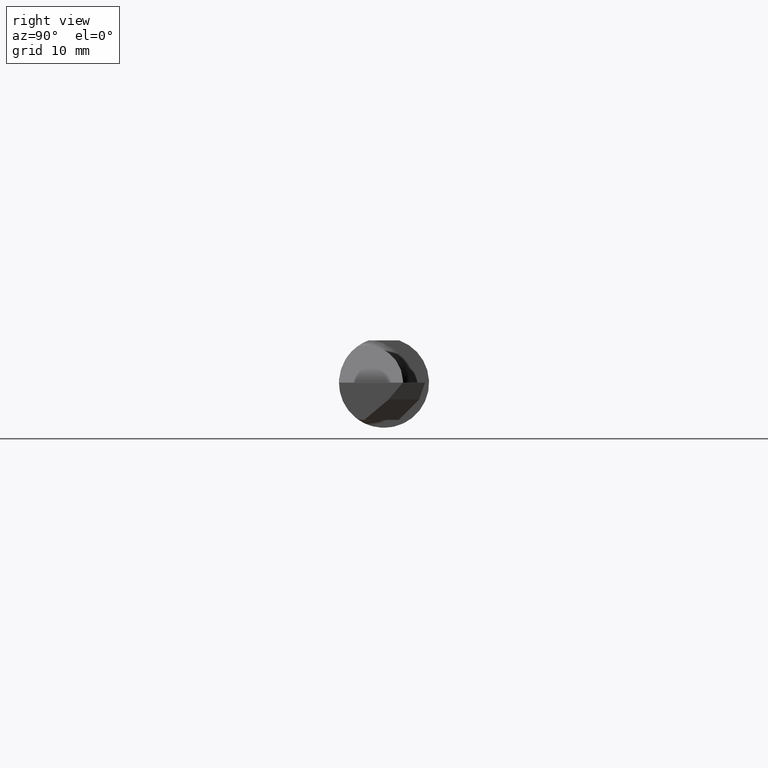
[diagram: clean part render]
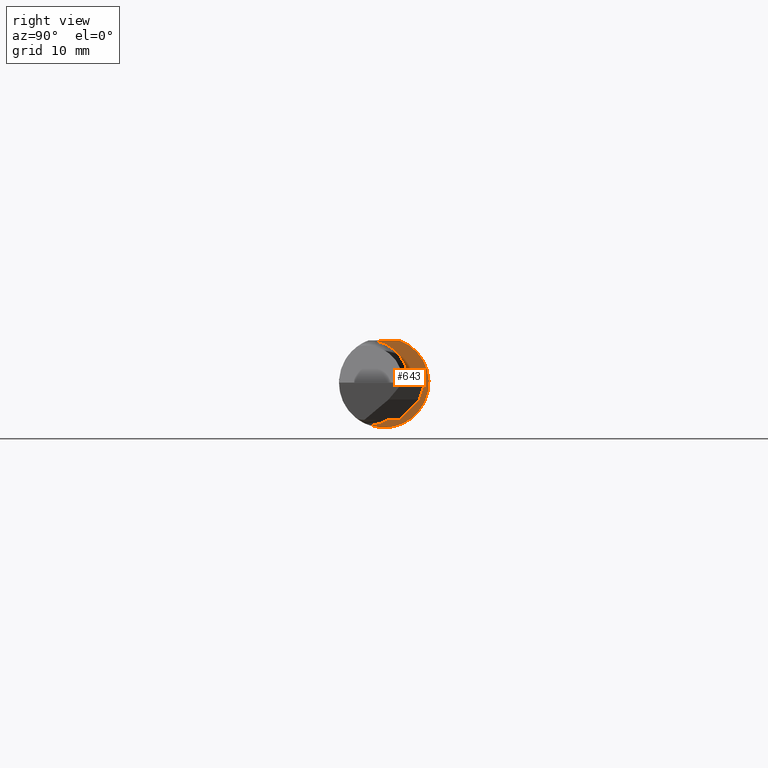
[diagram: same view with one face highlighted and labeled with its STEP entity id]
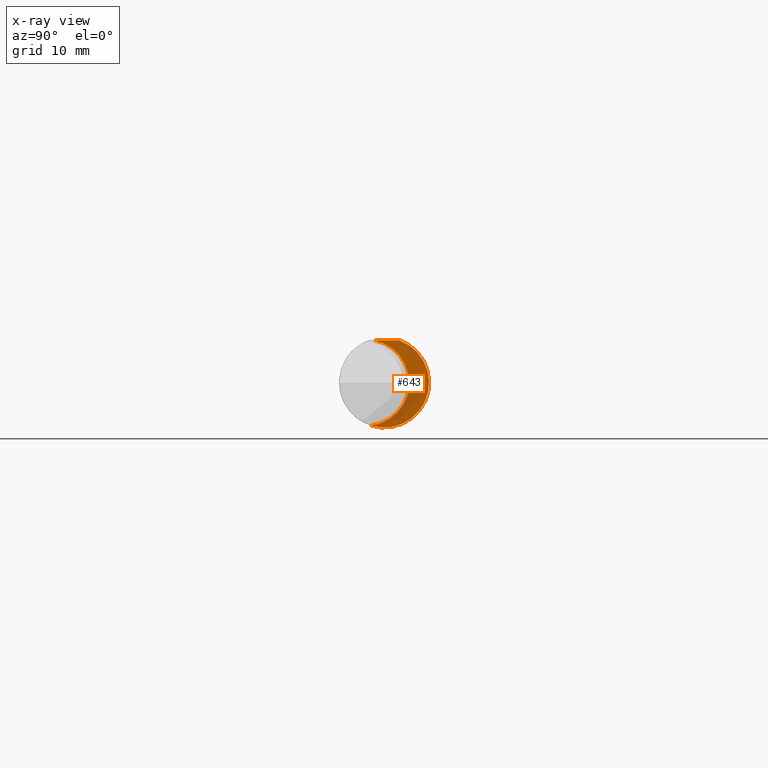
[diagram: x-ray of the same camera — body ghosted, the highlighted face saturated]
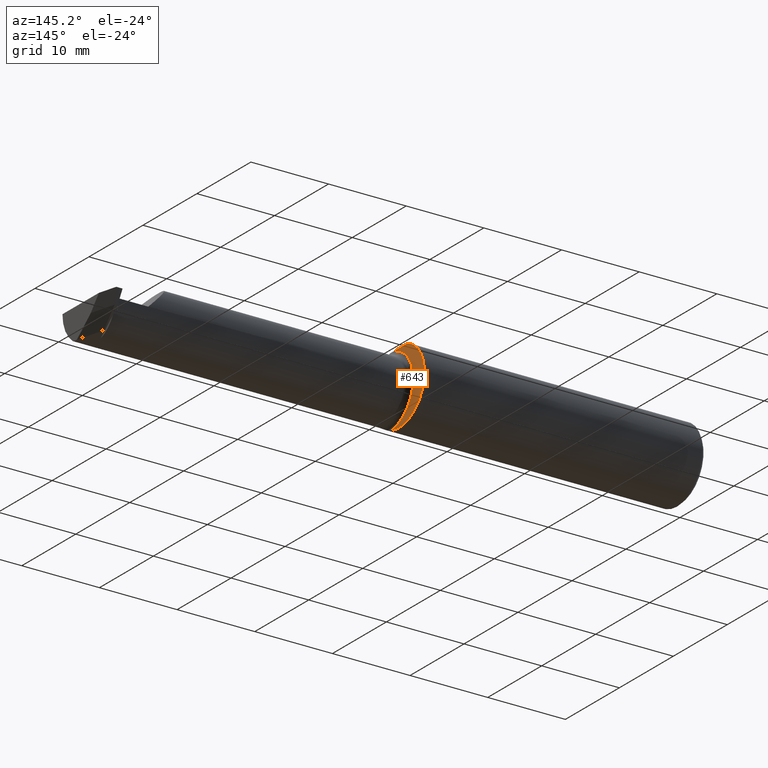
[diagram: same view with one face highlighted and labeled with its STEP entity id]
A machine part, right view. The second image highlights one B-rep face of the part: STEP entity #643.
The next image is the same camera in x-ray: the body ghosted, the highlighted face saturated — about 26% of this face is hidden behind the body in this view.
A second angle (auxiliary view) of the same face is appended — the face is thin or edge-on in the first view.
In plain terms, the highlighted planar face has unit normal (1, 0, 0).
Its self-contained STEP definition (entity closure, byte-faithful):
#13 = EDGE_LOOP ( 'NONE', ( #911, #196, #510 ) ) ;
#37 = VECTOR ( 'NONE', #549, 39.37007874015748143 ) ;
#92 = PLANE ( 'NONE',  #803 ) ;
#106 = DIRECTION ( 'NONE',  ( 1.000000000000000000, 0.000000000000000000, 0.000000000000000000 ) ) ;
#167 = AXIS2_PLACEMENT_3D ( 'NONE', #438, #433, #290 ) ;
#175 = DIRECTION ( 'NONE',  ( 1.000000000000000000, 0.000000000000000000, 0.000000000000000000 ) ) ;
#196 = ORIENTED_EDGE ( 'NONE', *, *, #473, .T. ) ;
#242 = VERTEX_POINT ( 'NONE', #924 ) ;
#279 = EDGE_CURVE ( 'NONE', #875, #242, #628, .T. ) ;
#290 = DIRECTION ( 'NONE',  ( 0.000000000000000000, 0.000000000000000000, -1.000000000000000000 ) ) ;
#404 = CARTESIAN_POINT ( 'NONE',  ( 1.425000000000000266, 0.1000000000000000056, 0.1763499999999999790 ) ) ;
#409 = CARTESIAN_POINT ( 'NONE',  ( 1.425000000000000266, 0.2796499999999999542, 0.000000000000000000 ) ) ;
#433 = DIRECTION ( 'NONE',  ( -1.000000000000000000, -0.000000000000000000, -0.000000000000000000 ) ) ;
#438 = CARTESIAN_POINT ( 'NONE',  ( 1.425000000000000266, -0.07535000000000005582, 0.000000000000000000 ) ) ;
#473 = EDGE_CURVE ( 'NONE', #762, #875, #500, .T. ) ;
#480 = CARTESIAN_POINT ( 'NONE',  ( 1.425000000000000266, 0.000000000000000000, 0.000000000000000000 ) ) ;
#500 = CIRCLE ( 'NONE', #167, 0.1799999999999999933 ) ;
#510 = ORIENTED_EDGE ( 'NONE', *, *, #279, .T. ) ;
#549 = DIRECTION ( 'NONE',  ( 0.000000000000000000, -1.000000000000000000, 0.000000000000000000 ) ) ;
#569 = CARTESIAN_POINT ( 'NONE',  ( 1.425000000000000266, -0.03928509323455842139, 0.1763499999999999790 ) ) ;
#595 = EDGE_CURVE ( 'NONE', #242, #762, #925, .T. ) ;
#628 = CIRCLE ( 'NONE', #811, 0.1873499999999999888 ) ;
#643 = ADVANCED_FACE ( 'NONE', ( #855 ), #92, .T. ) ;
#711 = DIRECTION ( 'NONE',  ( 0.000000000000000000, 0.000000000000000000, -1.000000000000000000 ) ) ;
#714 = DIRECTION ( 'NONE',  ( 0.000000000000000000, 0.000000000000000000, -1.000000000000000000 ) ) ;
#762 = VERTEX_POINT ( 'NONE', #569 ) ;
#803 = AXIS2_PLACEMENT_3D ( 'NONE', #409, #175, #711 ) ;
#811 = AXIS2_PLACEMENT_3D ( 'NONE', #480, #106, #714 ) ;
#855 = FACE_OUTER_BOUND ( 'NONE', #13, .T. ) ;
#875 = VERTEX_POINT ( 'NONE', #951 ) ;
#911 = ORIENTED_EDGE ( 'NONE', *, *, #595, .T. ) ;
#924 = CARTESIAN_POINT ( 'NONE',  ( 1.425000000000000266, 0.06325108694718213631, 0.1763499999999999790 ) ) ;
#925 = LINE ( 'NONE', #404, #37 ) ;
#951 = CARTESIAN_POINT ( 'NONE',  ( 1.425000000000000266, -0.05559153948241538773, -0.1789122780526117285 ) ) ;